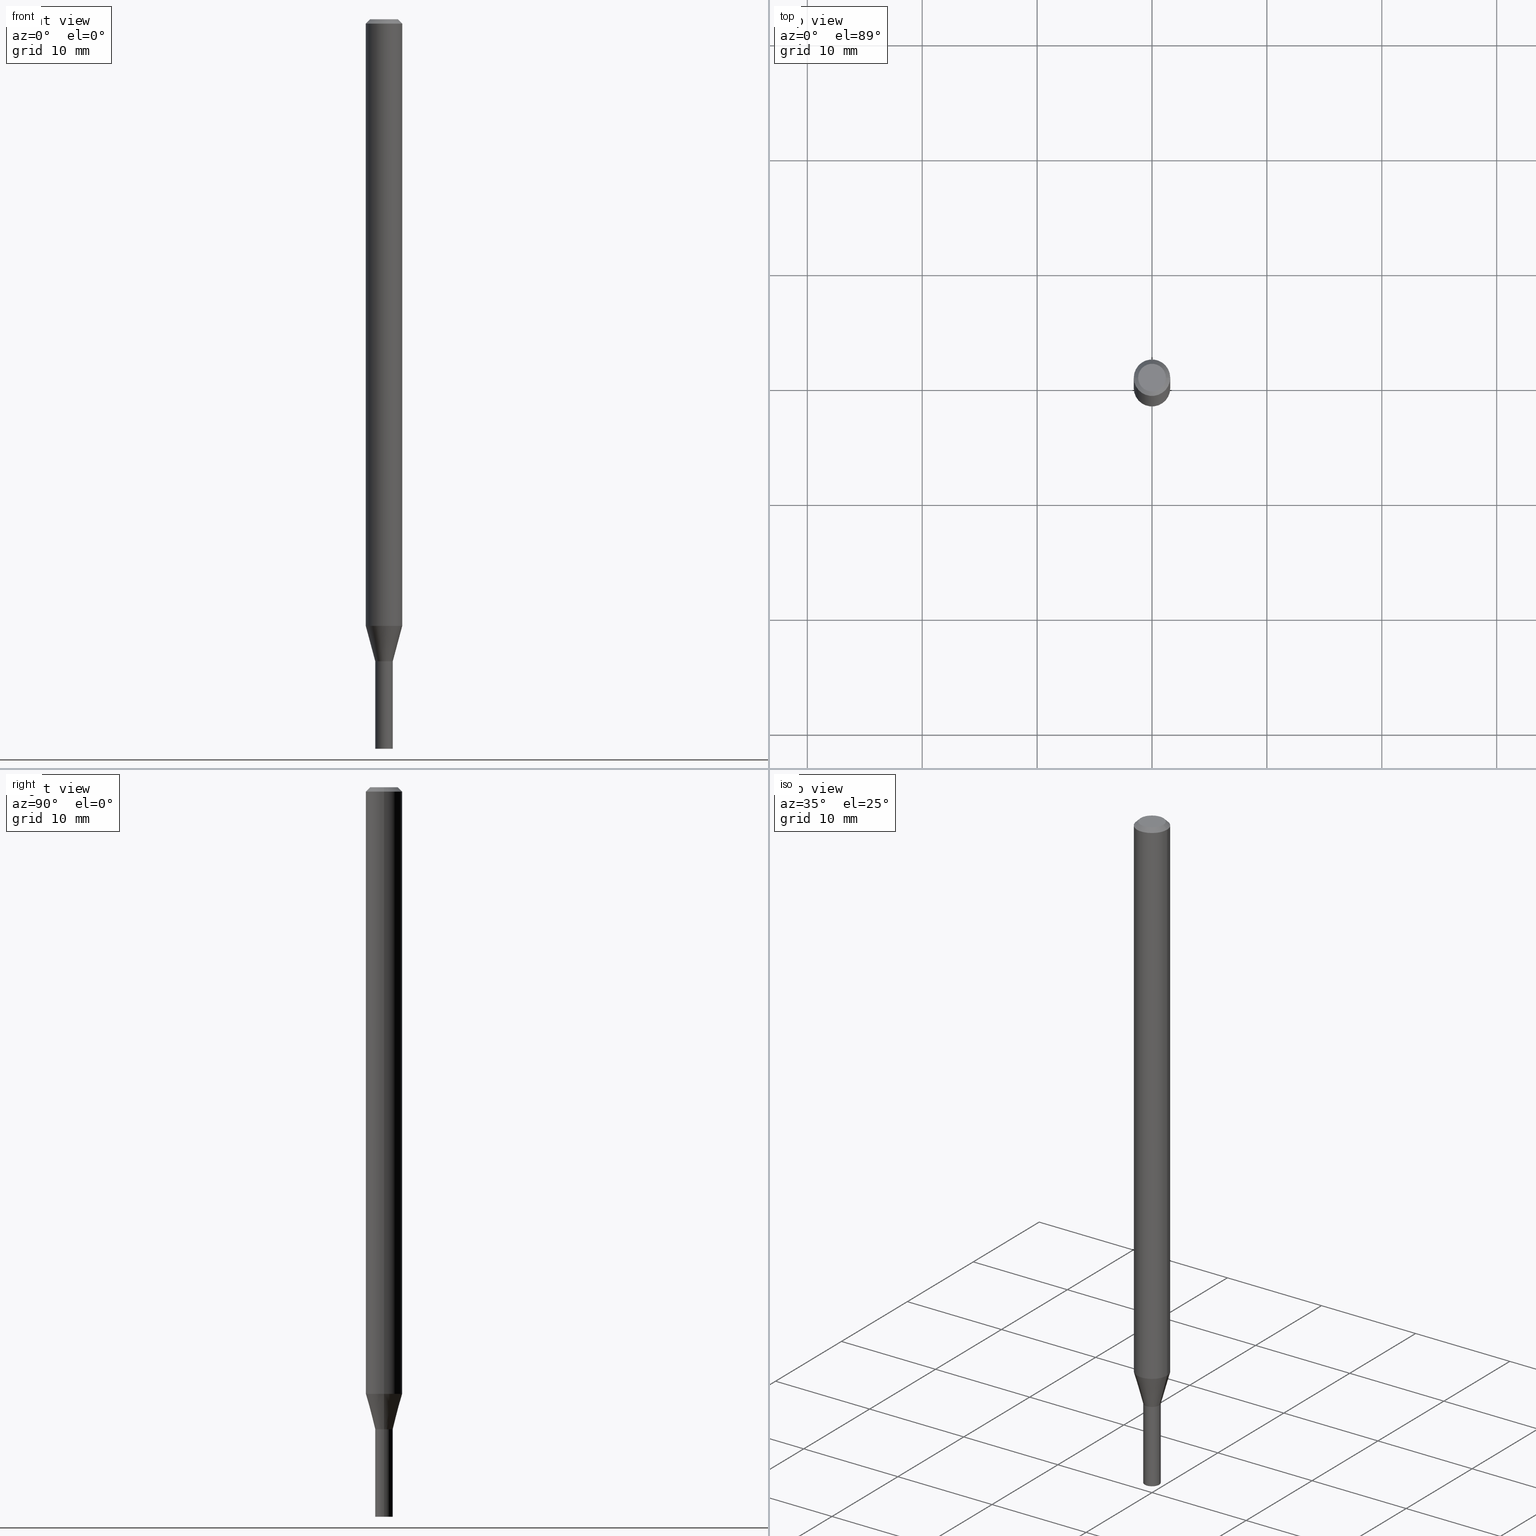
[diagram: canonical four-view strip — front | top / right | iso, engineering-drawing reading convention]
A machine part, canonical four-view strip (front | top / right | iso — engineering-drawing reading convention). The complete STEP part file that produces these views, byte-faithful:
ISO-10303-21;
HEADER;
FILE_DESCRIPTION (( 'STEP AP203' ),
    '1' );
FILE_NAME ('01239.STEP',
    '2024-03-20T00:25:17',
    ( '' ),
    ( '' ),
    'SwSTEP 2.0',
    'SolidWorks 2023',
    '' );
FILE_SCHEMA (( 'CONFIG_CONTROL_DESIGN' ));
ENDSEC;

DATA;
#1 = LINE ( 'NONE', #329, #173 ) ;
#2 = APPROVAL_DATE_TIME ( #303, #458 ) ;
#3 = DIRECTION ( 'NONE',  ( -2.445468806185136597E-29, 3.491481338843145583E-15, 1.000000000000000000 ) ) ;
#4 = LINE ( 'NONE', #298, #250 ) ;
#5 = AXIS2_PLACEMENT_3D ( 'NONE', #160, #81, #229 ) ;
#6 = LOCAL_TIME ( 20, 25, 17.00000000000000000, #148 ) ;
#7 = DIRECTION ( 'NONE',  ( -2.445468806185136597E-29, 3.491481338843145583E-15, 1.000000000000000000 ) ) ;
#8 = APPROVAL_STATUS ( 'not_yet_approved' ) ;
#9 = CARTESIAN_POINT ( 'NONE',  ( 5.380031373607300737E-29, -7.681258945454920203E-15, -2.200000000000000178 ) ) ;
#10 = VERTEX_POINT ( 'NONE', #246 ) ;
#11 = CALENDAR_DATE ( 2024, 19, 3 ) ;
#12 = CARTESIAN_POINT ( 'NONE',  ( 3.316907271900976096E-16, 0.04749999999999999362, -2.430275478499333970E-16 ) ) ;
#13 = ORIENTED_EDGE ( 'NONE', *, *, #425, .F. ) ;
#14 = CIRCLE ( 'NONE', #230, 0.06250000000000000000 ) ;
#15 = AXIS2_PLACEMENT_3D ( 'NONE', #9, #279, #416 ) ;
#16 = DIRECTION ( 'NONE',  ( 1.000000000000000000, -6.982962677686251722E-15, 0.000000000000000000 ) ) ;
#17 = ORIENTED_EDGE ( 'NONE', *, *, #421, .T. ) ;
#18 = ADVANCED_FACE ( 'NONE', ( #319 ), #168, .T. ) ;
#19 = DIRECTION ( 'NONE',  ( -1.000000000000000000, 6.982962677686265922E-15, -4.876176775795935793E-29 ) ) ;
#20 = ORIENTED_EDGE ( 'NONE', *, *, #146, .T. ) ;
#21 = FACE_OUTER_BOUND ( 'NONE', #295, .T. ) ;
#22 = EDGE_CURVE ( 'NONE', #280, #139, #462, .T. ) ;
#23 = APPROVAL_DATE_TIME ( #346, #438 ) ;
#24 = VERTEX_POINT ( 'NONE', #60 ) ;
#25 = ADVANCED_FACE ( 'NONE', ( #133 ), #356, .F. ) ;
#26 = PRODUCT_DEFINITION_SHAPE ( 'NONE', 'NONE',  #174 ) ;
#27 = CARTESIAN_POINT ( 'NONE',  ( 0.000000000000000000, 0.000000000000000000, 0.000000000000000000 ) ) ;
#28 = EDGE_LOOP ( 'NONE', ( #47, #244, #189, #255 ) ) ;
#29 =( CONVERSION_BASED_UNIT ( 'INCH', #318 ) LENGTH_UNIT ( ) NAMED_UNIT ( #218 ) );
#30 = ORIENTED_EDGE ( 'NONE', *, *, #68, .T. ) ;
#31 = ADVANCED_FACE ( 'NONE', ( #211 ), #369, .T. ) ;
#32 = ORIENTED_EDGE ( 'NONE', *, *, #427, .F. ) ;
#33 = FACE_OUTER_BOUND ( 'NONE', #374, .T. ) ;
#34 = DIRECTION ( 'NONE',  ( -2.445468806185136597E-29, 3.491481338843145583E-15, 1.000000000000000000 ) ) ;
#35 = AXIS2_PLACEMENT_3D ( 'NONE', #448, #127, #306 ) ;
#36 = PERSON_AND_ORGANIZATION_ROLE ( 'classification_officer' ) ;
#37 = MANIFOLD_SOLID_BREP ( 'Body-Move/Copy2[2]', #398 ) ;
#38 = DIRECTION ( 'NONE',  ( -2.445468806185136597E-29, 3.491481338843145583E-15, 1.000000000000000000 ) ) ;
#39 = ADVANCED_FACE ( 'NONE', ( #217 ), #348, .F. ) ;
#40 = CARTESIAN_POINT ( 'NONE',  ( -0.02999999999999964154, -7.468096124726893113E-15, -2.200000000000000178 ) ) ;
#41 = DIRECTION ( 'NONE',  ( 0.2588190451025215166, 1.565188264969620784E-15, 0.9659258262890679791 ) ) ;
#42 = VECTOR ( 'NONE', #436, 39.37007874015748143 ) ;
#43 = CC_DESIGN_APPROVAL ( #458, ( #257 ) ) ;
#44 = APPROVAL_ROLE ( '' ) ;
#45 = DIRECTION ( 'NONE',  ( -2.445468806185136597E-29, 3.491481338843145583E-15, 1.000000000000000000 ) ) ;
#46 = DIRECTION ( 'NONE',  ( 1.000000000000000000, -6.982962677686266711E-15, 0.000000000000000000 ) ) ;
#47 = ORIENTED_EDGE ( 'NONE', *, *, #68, .F. ) ;
#48 = CARTESIAN_POINT ( 'NONE',  ( 0.06250000000000000000, -4.888073874380388472E-16, -0.01499999999999999944 ) ) ;
#49 = VERTEX_POINT ( 'NONE', #386 ) ;
#50 = EDGE_CURVE ( 'NONE', #388, #178, #378, .T. ) ;
#51 = AXIS2_PLACEMENT_3D ( 'NONE', #70, #224, #183 ) ;
#52 = LOCAL_TIME ( 20, 25, 17.00000000000000000, #153 ) ;
#53 = DIRECTION ( 'NONE',  ( -1.000000000000000000, 6.982962677686266711E-15, 0.000000000000000000 ) ) ;
#54 = CARTESIAN_POINT ( 'NONE',  ( 0.02999999999999978378, -2.094888803305864926E-16, 1.462853032738770018E-30 ) ) ;
#55 = CARTESIAN_POINT ( 'NONE',  ( 3.774932479771048470E-45, -5.389603120341614588E-31, -1.543643685097680012E-16 ) ) ;
#56 = EDGE_LOOP ( 'NONE', ( #158, #17, #343, #310 ) ) ;
#57 = CIRCLE ( 'NONE', #326, 0.02999999999999999889 ) ;
#58 = ADVANCED_FACE ( 'NONE', ( #74 ), #104, .F. ) ;
#59 = CARTESIAN_POINT ( 'NONE',  ( 5.380031373607300737E-29, -7.681258945454920203E-15, -2.200000000000000178 ) ) ;
#60 = CARTESIAN_POINT ( 'NONE',  ( 0.02999999999999999889, -8.938192227438451682E-15, -2.500000000000000000 ) ) ;
#61 = DIRECTION ( 'NONE',  ( 1.000000000000000000, -6.982962677686267499E-15, 4.852736867747366768E-29 ) ) ;
#62 = ORIENTED_EDGE ( 'NONE', *, *, #336, .T. ) ;
#63 = CALENDAR_DATE ( 2024, 19, 3 ) ;
#64 = DIRECTION ( 'NONE',  ( 1.000000000000000000, -6.982962677686254878E-15, 0.000000000000000000 ) ) ;
#65 = LOCAL_TIME ( 20, 25, 17.00000000000000000, #450 ) ;
#66 = CARTESIAN_POINT ( 'NONE',  ( -0.02999999999999964154, -7.140889161724453994E-15, -2.200000000000000178 ) ) ;
#67 = DIRECTION ( 'NONE',  ( 1.000000000000000000, -6.982962677686267499E-15, 4.876176775795936353E-29 ) ) ;
#68 = EDGE_CURVE ( 'NONE', #178, #280, #430, .T. ) ;
#69 = APPLICATION_PROTOCOL_DEFINITION ( 'international standard', 'config_control_design', 1994, #140 ) ;
#70 = CARTESIAN_POINT ( 'NONE',  ( 2.094888803306417868E-16, 0.02999999999999231753, -2.200000000000000178 ) ) ;
#71 = EDGE_CURVE ( 'NONE', #24, #453, #1, .T. ) ;
#72 = VECTOR ( 'NONE', #77, 39.37007874015748143 ) ;
#73 = PERSON_AND_ORGANIZATION_ROLE ( 'creator' ) ;
#74 = FACE_OUTER_BOUND ( 'NONE', #278, .T. ) ;
#75 = DIRECTION ( 'NONE',  ( -2.445468806185136597E-29, 3.491481338843145583E-15, 1.000000000000000000 ) ) ;
#76 = PRODUCT_RELATED_PRODUCT_CATEGORY ( 'detail', '', ( #350 ) ) ;
#77 = DIRECTION ( 'NONE',  ( -2.445468806185136877E-29, 3.491481338843145188E-15, 1.000000000000000000 ) ) ;
#78 = CONICAL_SURFACE ( 'NONE', #347, 0.06250000000000000000, 0.7853981633974533860 ) ;
#79 = CARTESIAN_POINT ( 'NONE',  ( -0.02999999999999999889, -7.991818325553363117E-15, -2.200000000000000178 ) ) ;
#80 = EDGE_LOOP ( 'NONE', ( #376, #193, #413, #449 ) ) ;
#81 = DIRECTION ( 'NONE',  ( -2.438088387897960049E-29, 3.491481338843145188E-15, 1.000000000000000000 ) ) ;
#82 = ORIENTED_EDGE ( 'NONE', *, *, #124, .F. ) ;
#83 = CARTESIAN_POINT ( 'NONE',  ( 6.113672015462842613E-29, -8.728703347107864943E-15, -2.500000000000000000 ) ) ;
#84 = CC_DESIGN_DATE_AND_TIME_ASSIGNMENT ( #116, #402, ( #174 ) ) ;
#85 = CC_DESIGN_SECURITY_CLASSIFICATION ( #466, ( #257 ) ) ;
#86 = LINE ( 'NONE', #243, #72 ) ;
#87 = ORIENTED_EDGE ( 'NONE', *, *, #354, .F. ) ;
#88 = EDGE_CURVE ( 'NONE', #49, #454, #4, .T. ) ;
#89 = CALENDAR_DATE ( 2024, 19, 3 ) ;
#90 = EDGE_LOOP ( 'NONE', ( #463, #32, #415, #177 ) ) ;
#91 = DIRECTION ( 'NONE',  ( 1.000000000000000000, 0.000000000000000000, 0.000000000000000000 ) ) ;
#92 = DIRECTION ( 'NONE',  ( 1.000000000000000000, -6.982962677686266711E-15, 4.876176775795935232E-29 ) ) ;
#93 = AXIS2_PLACEMENT_3D ( 'NONE', #149, #112, #227 ) ;
#94 = DIRECTION ( 'NONE',  ( 1.000000000000000000, -6.982962677686267499E-15, 4.852736867747366768E-29 ) ) ;
#95 = CC_DESIGN_APPROVAL ( #438, ( #174 ) ) ;
#96 = ORIENTED_EDGE ( 'NONE', *, *, #455, .T. ) ;
#97 = DIRECTION ( 'NONE',  ( 1.000000000000000000, -6.982962677686254878E-15, 0.000000000000000000 ) ) ;
#98 = ORIENTED_EDGE ( 'NONE', *, *, #101, .T. ) ;
#99 = EDGE_CURVE ( 'NONE', #178, #388, #338, .T. ) ;
#100 = ORIENTED_EDGE ( 'NONE', *, *, #285, .T. ) ;
#101 = EDGE_CURVE ( 'NONE', #460, #322, #368, .T. ) ;
#102 = CIRCLE ( 'NONE', #241, 0.02949999999999999498 ) ;
#103 = VECTOR ( 'NONE', #117, 39.37007874015748143 ) ;
#104 = PLANE ( 'NONE',  #215 ) ;
#105 = APPROVAL_PERSON_ORGANIZATION ( #283, #438, #456 ) ;
#106 = SHAPE_DEFINITION_REPRESENTATION ( #26, #201 ) ;
#107 = DIRECTION ( 'NONE',  ( -2.445468806185136597E-29, 3.491481338843145583E-15, 1.000000000000000000 ) ) ;
#108 = CARTESIAN_POINT ( 'NONE',  ( 0.000000000000000000, 0.000000000000000000, 0.000000000000000000 ) ) ;
#109 = CC_DESIGN_PERSON_AND_ORGANIZATION_ASSIGNMENT ( #167, #134, ( #174 ) ) ;
#110 = DIRECTION ( 'NONE',  ( 2.445468806185136597E-29, -3.491481338843145583E-15, -1.000000000000000000 ) ) ;
#111 = PERSON_AND_ORGANIZATION ( #365, #251 ) ;
#112 = DIRECTION ( 'NONE',  ( -2.445468806185136597E-29, 3.491481338843145583E-15, 1.000000000000000000 ) ) ;
#113 = AXIS2_PLACEMENT_3D ( 'NONE', #302, #196, #439 ) ;
#114 = CYLINDRICAL_SURFACE ( 'NONE', #136, 0.02999999999999999889 ) ;
#115 = EDGE_CURVE ( 'NONE', #24, #335, #459, .T. ) ;
#116 = DATE_AND_TIME ( #11, #52 ) ;
#117 = DIRECTION ( 'NONE',  ( -2.445468806185136877E-29, 3.491481338843145188E-15, 1.000000000000000000 ) ) ;
#118 = PERSON_AND_ORGANIZATION ( #365, #251 ) ;
#119 = CARTESIAN_POINT ( 'NONE',  ( 3.668203209277705088E-31, -5.237222008264718399E-17, -0.01499999999999999944 ) ) ;
#120 = EDGE_LOOP ( 'NONE', ( #20, #96, #249, #235 ) ) ;
#121 = AXIS2_PLACEMENT_3D ( 'NONE', #59, #3, #399 ) ;
#122 = CC_DESIGN_APPROVAL ( #432, ( #466 ) ) ;
#123 = SECURITY_CLASSIFICATION_LEVEL ( 'unclassified' ) ;
#124 = EDGE_CURVE ( 'NONE', #388, #460, #185, .T. ) ;
#125 = FACE_OUTER_BOUND ( 'NONE', #120, .T. ) ;
#126 = ORIENTED_EDGE ( 'NONE', *, *, #400, .F. ) ;
#127 = DIRECTION ( 'NONE',  ( -2.445468806185136597E-29, 3.491481338843145583E-15, 1.000000000000000000 ) ) ;
#128 = CARTESIAN_POINT ( 'NONE',  ( -0.02999999999999991909, -7.466350384057469243E-15, -2.199500000000000011 ) ) ;
#129 = ORIENTED_EDGE ( 'NONE', *, *, #408, .F. ) ;
#130 = AXIS2_PLACEMENT_3D ( 'NONE', #27, #204, #170 ) ;
#131 = ORIENTED_EDGE ( 'NONE', *, *, #22, .F. ) ;
#132 = DIRECTION ( 'NONE',  ( -2.445468806185136877E-29, 3.491481338843145188E-15, 1.000000000000000000 ) ) ;
#133 = FACE_OUTER_BOUND ( 'NONE', #410, .T. ) ;
#134 = PERSON_AND_ORGANIZATION_ROLE ( 'creator' ) ;
#135 = ORIENTED_EDGE ( 'NONE', *, *, #22, .T. ) ;
#136 = AXIS2_PLACEMENT_3D ( 'NONE', #401, #75, #435 ) ;
#137 = DIRECTION ( 'NONE',  ( 1.000000000000000000, -6.982962677686262766E-15, 0.000000000000000000 ) ) ;
#138 = AXIS2_PLACEMENT_3D ( 'NONE', #175, #288, #137 ) ;
#139 = VERTEX_POINT ( 'NONE', #150 ) ;
#140 = APPLICATION_CONTEXT ( 'configuration controlled 3d designs of mechanical parts and assemblies' ) ;
#141 = CARTESIAN_POINT ( 'NONE',  ( 5.380031373607300737E-29, -7.681258945454920203E-15, -2.200000000000000178 ) ) ;
#142 = ORIENTED_EDGE ( 'NONE', *, *, #360, .F. ) ;
#143 = CONICAL_SURFACE ( 'NONE', #263, 0.06250000000000000000, 0.7853981633974533860 ) ;
#144 = CONICAL_SURFACE ( 'NONE', #113, 0.02999999999999964154, 0.2617993877991502405 ) ;
#145 = CYLINDRICAL_SURFACE ( 'NONE', #256, 0.02999999999999999889 ) ;
#146 = EDGE_CURVE ( 'NONE', #49, #10, #102, .T. ) ;
#147 = CARTESIAN_POINT ( 'NONE',  ( 5.083416424034546588E-29, -7.257771408572077491E-15, -2.078708348754010782 ) ) ;
#148 = COORDINATED_UNIVERSAL_TIME_OFFSET ( 5, 0, .BEHIND. ) ;
#149 = CARTESIAN_POINT ( 'NONE',  ( 6.113672015462842613E-29, -8.728703347107864943E-15, -2.500000000000000000 ) ) ;
#150 = CARTESIAN_POINT ( 'NONE',  ( -0.06250000000000000000, -3.210982604477299866E-15, -0.01499999999999999944 ) ) ;
#151 = CIRCLE ( 'NONE', #465, 0.02999999999999999889 ) ;
#152 = DIRECTION ( 'NONE',  ( 0.7071067811865656694, -2.468850131082446387E-15, 0.7071067811865294761 ) ) ;
#153 = COORDINATED_UNIVERSAL_TIME_OFFSET ( 5, 0, .BEHIND. ) ;
#154 = CARTESIAN_POINT ( 'NONE',  ( 0.000000000000000000, 0.000000000000000000, 0.000000000000000000 ) ) ;
#155 = EDGE_LOOP ( 'NONE', ( #457, #275 ) ) ;
#156 = EDGE_CURVE ( 'NONE', #460, #280, #14, .T. ) ;
#157 = LINE ( 'NONE', #54, #103 ) ;
#158 = ORIENTED_EDGE ( 'NONE', *, *, #115, .T. ) ;
#159 = VECTOR ( 'NONE', #214, 39.37007874015748143 ) ;
#160 = CARTESIAN_POINT ( 'NONE',  ( 6.194428952736783458E-29, -8.613054816532157721E-15, -2.500000000000000000 ) ) ;
#161 = CARTESIAN_POINT ( 'NONE',  ( -0.02999999999999999889, -7.991818325553363117E-15, -2.500000000000000000 ) ) ;
#162 = ORIENTED_EDGE ( 'NONE', *, *, #191, .F. ) ;
#163 = EDGE_LOOP ( 'NONE', ( #358, #135, #126, #294 ) ) ;
#164 = VECTOR ( 'NONE', #41, 39.37007874015748143 ) ;
#165 = LOCAL_TIME ( 20, 25, 17.00000000000000000, #422 ) ;
#166 = CIRCLE ( 'NONE', #291, 0.02999999999999991909 ) ;
#167 = PERSON_AND_ORGANIZATION ( #365, #251 ) ;
#168 = CYLINDRICAL_SURFACE ( 'NONE', #357, 0.06250000000000000000 ) ;
#169 = CARTESIAN_POINT ( 'NONE',  ( 5.378808639204207936E-29, -7.679513204785499488E-15, -2.199500000000000011 ) ) ;
#170 = DIRECTION ( 'NONE',  ( 1.000000000000000000, -6.982962677686266711E-15, 4.876176775795935232E-29 ) ) ;
#171 = EDGE_CURVE ( 'NONE', #315, #322, #395, .T. ) ;
#172 = ORIENTED_EDGE ( 'NONE', *, *, #421, .F. ) ;
#173 = VECTOR ( 'NONE', #184, 39.37007874015748143 ) ;
#174 = PRODUCT_DEFINITION ( 'UNKNOWN', '', #257, #367 ) ;
#175 = CARTESIAN_POINT ( 'NONE',  ( 5.083416424034546588E-29, -7.257771408572077491E-15, -2.078708348754010782 ) ) ;
#176 = VECTOR ( 'NONE', #132, 39.37007874015748143 ) ;
#177 = ORIENTED_EDGE ( 'NONE', *, *, #191, .T. ) ;
#178 = VERTEX_POINT ( 'NONE', #66 ) ;
#179 = DIRECTION ( 'NONE',  ( -2.445468806185136877E-29, 3.491481338843145188E-15, 1.000000000000000000 ) ) ;
#180 = CC_DESIGN_DATE_AND_TIME_ASSIGNMENT ( #239, #418, ( #466 ) ) ;
#181 = VECTOR ( 'NONE', #179, 39.37007874015748143 ) ;
#182 = CARTESIAN_POINT ( 'NONE',  ( 0.06250000000000000000, -4.811533449433679005E-16, -0.01499999999999999944 ) ) ;
#183 = DIRECTION ( 'NONE',  ( -1.000000000000000000, 6.982962677686265922E-15, -4.876176775795935793E-29 ) ) ;
#184 = DIRECTION ( 'NONE',  ( -2.445468806185136877E-29, 3.491481338843145188E-15, 1.000000000000000000 ) ) ;
#185 = LINE ( 'NONE', #396, #164 ) ;
#186 = AXIS2_PLACEMENT_3D ( 'NONE', #308, #190, #16 ) ;
#187 = COORDINATED_UNIVERSAL_TIME_OFFSET ( 5, 0, .BEHIND. ) ;
#188 = DIRECTION ( 'NONE',  ( 1.000000000000000000, -6.982962677686251722E-15, 0.000000000000000000 ) ) ;
#189 = ORIENTED_EDGE ( 'NONE', *, *, #124, .T. ) ;
#190 = DIRECTION ( 'NONE',  ( -2.445468806185136597E-29, 3.491481338843145583E-15, 1.000000000000000000 ) ) ;
#191 = EDGE_CURVE ( 'NONE', #139, #322, #370, .T. ) ;
#192 = DIRECTION ( 'NONE',  ( 1.000000000000000000, -6.982962677686236734E-15, 0.000000000000000000 ) ) ;
#193 = ORIENTED_EDGE ( 'NONE', *, *, #360, .T. ) ;
#194 = AXIS2_PLACEMENT_3D ( 'NONE', #330, #397, #258 ) ;
#195 = AXIS2_PLACEMENT_3D ( 'NONE', #119, #270, #46 ) ;
#196 = DIRECTION ( 'NONE',  ( -2.445468806185136597E-29, 3.491481338843145583E-15, 1.000000000000000000 ) ) ;
#197 = ORIENTED_EDGE ( 'NONE', *, *, #287, .F. ) ;
#198 = ADVANCED_FACE ( 'NONE', ( #437 ), #114, .T. ) ;
#199 = DIRECTION ( 'NONE',  ( 2.445468806185136597E-29, -3.491481338843145583E-15, -1.000000000000000000 ) ) ;
#200 = EDGE_LOOP ( 'NONE', ( #351, #333, #423, #129 ) ) ;
#201 = ADVANCED_BREP_SHAPE_REPRESENTATION ( '01239', ( #344, #37, #407 ), #313 ) ;
#202 = APPLICATION_CONTEXT ( 'configuration controlled 3d designs of mechanical parts and assemblies' ) ;
#203 = DIRECTION ( 'NONE',  ( -2.445468806185136597E-29, 3.491481338843145583E-15, 1.000000000000000000 ) ) ;
#204 = DIRECTION ( 'NONE',  ( -2.445468806185136597E-29, 3.491481338843145583E-15, 1.000000000000000000 ) ) ;
#205 = CONICAL_SURFACE ( 'NONE', #271, 0.02949999999999999498, 0.7853981633974739252 ) ;
#206 = AXIS2_PLACEMENT_3D ( 'NONE', #55, #203, #94 ) ;
#207 = LINE ( 'NONE', #352, #242 ) ;
#208 = EDGE_LOOP ( 'NONE', ( #289, #420 ) ) ;
#209 = DATE_AND_TIME ( #63, #65 ) ;
#210 = ADVANCED_FACE ( 'NONE', ( #359 ), #143, .T. ) ;
#211 = FACE_OUTER_BOUND ( 'NONE', #28, .T. ) ;
#212 = CC_DESIGN_PERSON_AND_ORGANIZATION_ASSIGNMENT ( #349, #247, ( #350 ) ) ;
#213 = CARTESIAN_POINT ( 'NONE',  ( 0.06250000000000000000, -7.694206575927469161E-15, -2.078708348754010782 ) ) ;
#214 = DIRECTION ( 'NONE',  ( -2.445468806185136877E-29, 3.491481338843145188E-15, 1.000000000000000000 ) ) ;
#215 = AXIS2_PLACEMENT_3D ( 'NONE', #226, #366, #297 ) ;
#216 = APPROVAL_PERSON_ORGANIZATION ( #118, #458, #328 ) ;
#217 = FACE_OUTER_BOUND ( 'NONE', #80, .T. ) ;
#218 = DIMENSIONAL_EXPONENTS ( 1.000000000000000000, 0.000000000000000000, 0.000000000000000000, 0.000000000000000000, 0.000000000000000000, 0.000000000000000000, 0.000000000000000000 ) ;
#219 = CARTESIAN_POINT ( 'NONE',  ( 3.668203209277705088E-31, -5.237222008264718399E-17, -0.01499999999999999944 ) ) ;
#220 = CARTESIAN_POINT ( 'NONE',  ( 5.380031373607300737E-29, -7.681258945454920203E-15, -2.200000000000000178 ) ) ;
#221 =( NAMED_UNIT ( * ) PLANE_ANGLE_UNIT ( ) SI_UNIT ( $, .RADIAN. ) );
#222 = CLOSED_SHELL ( 'NONE', ( #198, #262, #234, #228 ) ) ;
#223 = AXIS2_PLACEMENT_3D ( 'NONE', #154, #404, #377 ) ;
#224 = DIRECTION ( 'NONE',  ( 2.438088387897960049E-29, -3.491481338843145188E-15, -1.000000000000000000 ) ) ;
#225 = UNCERTAINTY_MEASURE_WITH_UNIT (LENGTH_MEASURE( 1.000000000000000082E-05 ), #29, 'distance_accuracy_value', 'NONE');
#226 = CARTESIAN_POINT ( 'NONE',  ( 5.380031373607300737E-29, -7.681258945454920203E-15, -2.200000000000000178 ) ) ;
#227 = DIRECTION ( 'NONE',  ( 1.000000000000000000, -6.982962677686236734E-15, 0.000000000000000000 ) ) ;
#228 = ADVANCED_FACE ( 'NONE', ( #33 ), #324, .F. ) ;
#229 = DIRECTION ( 'NONE',  ( 1.000000000000000000, -6.982962677686265922E-15, 4.876176775795935793E-29 ) ) ;
#230 = AXIS2_PLACEMENT_3D ( 'NONE', #147, #7, #301 ) ;
#231 = CIRCLE ( 'NONE', #15, 0.02999999999999999889 ) ;
#232 = EDGE_LOOP ( 'NONE', ( #131, #429, #98, #162 ) ) ;
#233 = CARTESIAN_POINT ( 'NONE',  ( 5.380031373607300737E-29, -7.681258945454920203E-15, -2.200000000000000178 ) ) ;
#234 = ADVANCED_FACE ( 'NONE', ( #464 ), #145, .T. ) ;
#235 = ORIENTED_EDGE ( 'NONE', *, *, #88, .F. ) ;
#236 = PERSON_AND_ORGANIZATION_ROLE ( 'design_supplier' ) ;
#237 = CARTESIAN_POINT ( 'NONE',  ( 0.04749999999999999362, -4.035134999187581581E-16, -1.543643685097654127E-16 ) ) ;
#238 = ORIENTED_EDGE ( 'NONE', *, *, #248, .T. ) ;
#239 = DATE_AND_TIME ( #405, #6 ) ;
#240 = CYLINDRICAL_SURFACE ( 'NONE', #223, 0.06250000000000000000 ) ;
#241 = AXIS2_PLACEMENT_3D ( 'NONE', #433, #38, #331 ) ;
#242 = VECTOR ( 'NONE', #389, 39.37007874015748143 ) ;
#243 = CARTESIAN_POINT ( 'NONE',  ( -0.02999999999999978378, 2.131628207280285195E-16, -1.475680527076461022E-30 ) ) ;
#244 = ORIENTED_EDGE ( 'NONE', *, *, #99, .T. ) ;
#245 = LINE ( 'NONE', #434, #176 ) ;
#246 = CARTESIAN_POINT ( 'NONE',  ( -0.02949999999999999498, -7.468999611231579655E-15, -2.200000000000000178 ) ) ;
#247 = PERSON_AND_ORGANIZATION_ROLE ( 'design_owner' ) ;
#248 = EDGE_CURVE ( 'NONE', #453, #284, #151, .T. ) ;
#249 = ORIENTED_EDGE ( 'NONE', *, *, #373, .F. ) ;
#250 = VECTOR ( 'NONE', #152, 39.37007874015748143 ) ;
#251 = ORGANIZATION ( 'UNSPECIFIED', 'UNSPECIFIED', '' ) ;
#252 = ORIENTED_EDGE ( 'NONE', *, *, #71, .T. ) ;
#253 = DIRECTION ( 'NONE',  ( -2.445468806185136597E-29, 3.491481338843145583E-15, 1.000000000000000000 ) ) ;
#254 = DIRECTION ( 'NONE',  ( 1.000000000000000000, -6.982962677686266711E-15, 4.876176775795935793E-29 ) ) ;
#255 = ORIENTED_EDGE ( 'NONE', *, *, #440, .F. ) ;
#256 = AXIS2_PLACEMENT_3D ( 'NONE', #296, #107, #67 ) ;
#257 = PRODUCT_DEFINITION_FORMATION_WITH_SPECIFIED_SOURCE ( 'ANY', '', #350, .NOT_KNOWN. ) ;
#258 = DIRECTION ( 'NONE',  ( 1.000000000000000000, -6.982962677686254878E-15, 0.000000000000000000 ) ) ;
#259 = DIRECTION ( 'NONE',  ( 1.000000000000000000, -6.982962677686266711E-15, 0.000000000000000000 ) ) ;
#260 = DIRECTION ( 'NONE',  ( -2.445468806185136597E-29, 3.491481338843145583E-15, 1.000000000000000000 ) ) ;
#261 = CARTESIAN_POINT ( 'NONE',  ( 3.668203209277705088E-31, -5.237222008264718399E-17, -0.01499999999999999944 ) ) ;
#262 = ADVANCED_FACE ( 'NONE', ( #342 ), #269, .F. ) ;
#263 = AXIS2_PLACEMENT_3D ( 'NONE', #261, #110, #265 ) ;
#264 = CIRCLE ( 'NONE', #320, 0.02999999999999991909 ) ;
#265 = DIRECTION ( 'NONE',  ( -1.000000000000000000, 6.982962677686266711E-15, 0.000000000000000000 ) ) ;
#266 = ADVANCED_FACE ( 'NONE', ( #125 ), #281, .T. ) ;
#267 = DIRECTION ( 'NONE',  ( -2.445468806185136597E-29, 3.491481338843145583E-15, 1.000000000000000000 ) ) ;
#268 = ADVANCED_FACE ( 'NONE', ( #409 ), #274, .F. ) ;
#269 = PLANE ( 'NONE',  #5 ) ;
#270 = DIRECTION ( 'NONE',  ( -2.445468806185136597E-29, 3.491481338843145583E-15, 1.000000000000000000 ) ) ;
#271 = AXIS2_PLACEMENT_3D ( 'NONE', #233, #372, #188 ) ;
#272 = ORIENTED_EDGE ( 'NONE', *, *, #50, .F. ) ;
#273 = PERSON_AND_ORGANIZATION ( #365, #251 ) ;
#274 = PLANE ( 'NONE',  #452 ) ;
#275 = ORIENTED_EDGE ( 'NONE', *, *, #425, .T. ) ;
#276 = CARTESIAN_POINT ( 'NONE',  ( -0.04749999999999999362, 3.578768372314208041E-16, -1.543643685097703924E-16 ) ) ;
#277 = EDGE_CURVE ( 'NONE', #317, #139, #414, .T. ) ;
#278 = EDGE_LOOP ( 'NONE', ( #445, #197 ) ) ;
#279 = DIRECTION ( 'NONE',  ( -2.445468806185136597E-29, 3.491481338843145583E-15, 1.000000000000000000 ) ) ;
#280 = VERTEX_POINT ( 'NONE', #411 ) ;
#281 = CONICAL_SURFACE ( 'NONE', #186, 0.02949999999999999498, 0.7853981633974739252 ) ;
#282 = CIRCLE ( 'NONE', #363, 0.04749999999999999362 ) ;
#283 = PERSON_AND_ORGANIZATION ( #365, #251 ) ;
#284 = VERTEX_POINT ( 'NONE', #79 ) ;
#285 = EDGE_CURVE ( 'NONE', #388, #454, #157, .T. ) ;
#286 = CARTESIAN_POINT ( 'NONE',  ( 0.000000000000000000, 0.000000000000000000, 0.000000000000000000 ) ) ;
#287 = EDGE_CURVE ( 'NONE', #10, #49, #431, .T. ) ;
#288 = DIRECTION ( 'NONE',  ( -2.445468806185136597E-29, 3.491481338843145583E-15, 1.000000000000000000 ) ) ;
#289 = ORIENTED_EDGE ( 'NONE', *, *, #115, .F. ) ;
#290 = AXIS2_PLACEMENT_3D ( 'NONE', #219, #267, #259 ) ;
#291 = AXIS2_PLACEMENT_3D ( 'NONE', #169, #253, #97 ) ;
#292 =( NAMED_UNIT ( * ) SI_UNIT ( $, .STERADIAN. ) SOLID_ANGLE_UNIT ( ) );
#293 = CARTESIAN_POINT ( 'NONE',  ( 0.000000000000000000, 0.000000000000000000, 0.000000000000000000 ) ) ;
#294 = ORIENTED_EDGE ( 'NONE', *, *, #101, .F. ) ;
#295 = EDGE_LOOP ( 'NONE', ( #447, #30, #381, #82 ) ) ;
#296 = CARTESIAN_POINT ( 'NONE',  ( 0.000000000000000000, 0.000000000000000000, 0.000000000000000000 ) ) ;
#297 = DIRECTION ( 'NONE',  ( 1.000000000000000000, -6.982962677686265922E-15, 4.876176775795935793E-29 ) ) ;
#298 = CARTESIAN_POINT ( 'NONE',  ( 0.02949999999999999498, -7.887256344446665513E-15, -2.200000000000000178 ) ) ;
#299 = CALENDAR_DATE ( 2024, 19, 3 ) ;
#300 = LOCAL_TIME ( 20, 25, 17.00000000000000000, #187 ) ;
#301 = DIRECTION ( 'NONE',  ( 1.000000000000000000, -6.982962677686262766E-15, 0.000000000000000000 ) ) ;
#302 = CARTESIAN_POINT ( 'NONE',  ( 5.380031373607300737E-29, -7.681258945454920203E-15, -2.200000000000000178 ) ) ;
#303 = DATE_AND_TIME ( #299, #300 ) ;
#304 = CARTESIAN_POINT ( 'NONE',  ( -0.06250000000000000000, 3.840629472727444916E-16, -0.01499999999999999944 ) ) ;
#305 = EDGE_LOOP ( 'NONE', ( #13, #323, #340, #383 ) ) ;
#306 = DIRECTION ( 'NONE',  ( 1.000000000000000000, -6.982962677686251722E-15, 0.000000000000000000 ) ) ;
#307 = ORIENTED_EDGE ( 'NONE', *, *, #354, .T. ) ;
#308 = CARTESIAN_POINT ( 'NONE',  ( 5.380031373607300737E-29, -7.681258945454920203E-15, -2.200000000000000178 ) ) ;
#309 = DIRECTION ( 'NONE',  ( -2.445468806185136597E-29, 3.491481338843145583E-15, 1.000000000000000000 ) ) ;
#310 = ORIENTED_EDGE ( 'NONE', *, *, #71, .F. ) ;
#311 = VECTOR ( 'NONE', #334, 39.37007874015748143 ) ;
#312 = ADVANCED_FACE ( 'NONE', ( #380 ), #78, .T. ) ;
#313 =( GEOMETRIC_REPRESENTATION_CONTEXT ( 3 ) GLOBAL_UNCERTAINTY_ASSIGNED_CONTEXT ( ( #225 ) ) GLOBAL_UNIT_ASSIGNED_CONTEXT ( ( #29, #221, #292 ) ) REPRESENTATION_CONTEXT ( 'NONE', 'WORKASPACE' ) );
#314 = CARTESIAN_POINT ( 'NONE',  ( 0.02999999999999991909, -7.889002085116086227E-15, -2.199500000000000011 ) ) ;
#315 = VERTEX_POINT ( 'NONE', #237 ) ;
#316 = APPLICATION_PROTOCOL_DEFINITION ( 'international standard', 'config_control_design', 1994, #202 ) ;
#317 = VERTEX_POINT ( 'NONE', #276 ) ;
#318 = LENGTH_MEASURE_WITH_UNIT ( LENGTH_MEASURE( 0.02539999999999999897 ), #387 );
#319 = FACE_OUTER_BOUND ( 'NONE', #163, .T. ) ;
#320 = AXIS2_PLACEMENT_3D ( 'NONE', #371, #45, #332 ) ;
#321 = ADVANCED_FACE ( 'NONE', ( #375 ), #205, .T. ) ;
#322 = VERTEX_POINT ( 'NONE', #48 ) ;
#323 = ORIENTED_EDGE ( 'NONE', *, *, #171, .T. ) ;
#324 = PLANE ( 'NONE',  #51 ) ;
#325 = ADVANCED_FACE ( 'NONE', ( #21 ), #144, .T. ) ;
#326 = AXIS2_PLACEMENT_3D ( 'NONE', #83, #309, #192 ) ;
#327 = DIRECTION ( 'NONE',  ( 1.000000000000000000, -6.982962677686268288E-15, 0.000000000000000000 ) ) ;
#328 = APPROVAL_ROLE ( '' ) ;
#329 = CARTESIAN_POINT ( 'NONE',  ( 0.02999999999999999889, -2.094888803305880210E-16, 1.462853032738780878E-30 ) ) ;
#330 = CARTESIAN_POINT ( 'NONE',  ( 5.380031373607300737E-29, -7.681258945454920203E-15, -2.200000000000000178 ) ) ;
#331 = DIRECTION ( 'NONE',  ( 1.000000000000000000, -6.982962677686251722E-15, 0.000000000000000000 ) ) ;
#332 = DIRECTION ( 'NONE',  ( 1.000000000000000000, -6.982962677686254878E-15, 0.000000000000000000 ) ) ;
#333 = ORIENTED_EDGE ( 'NONE', *, *, #287, .T. ) ;
#334 = DIRECTION ( 'NONE',  ( -0.7071067811865511255, 2.468850131082294531E-15, -0.7071067811865439090 ) ) ;
#335 = VERTEX_POINT ( 'NONE', #161 ) ;
#336 = EDGE_CURVE ( 'NONE', #335, #24, #57, .T. ) ;
#337 = FACE_OUTER_BOUND ( 'NONE', #232, .T. ) ;
#338 = CIRCLE ( 'NONE', #194, 0.02999999999999964154 ) ;
#339 = CIRCLE ( 'NONE', #138, 0.06250000000000000000 ) ;
#340 = ORIENTED_EDGE ( 'NONE', *, *, #400, .T. ) ;
#341 = ADVANCED_FACE ( 'NONE', ( #337 ), #240, .T. ) ;
#342 = FACE_OUTER_BOUND ( 'NONE', #208, .T. ) ;
#343 = ORIENTED_EDGE ( 'NONE', *, *, #248, .F. ) ;
#344 = MANIFOLD_SOLID_BREP ( 'Body-Move/Copy2[1]', #222 ) ;
#345 = VERTEX_POINT ( 'NONE', #128 ) ;
#346 = DATE_AND_TIME ( #89, #165 ) ;
#347 = AXIS2_PLACEMENT_3D ( 'NONE', #444, #199, #53 ) ;
#348 = CYLINDRICAL_SURFACE ( 'NONE', #393, 0.02999999999999978378 ) ;
#349 = PERSON_AND_ORGANIZATION ( #365, #251 ) ;
#350 = PRODUCT ( '01239', '01239', '', ( #362 ) ) ;
#351 = ORIENTED_EDGE ( 'NONE', *, *, #455, .F. ) ;
#352 = CARTESIAN_POINT ( 'NONE',  ( -0.02949999999999999498, -7.471648838405690067E-15, -2.200000000000000178 ) ) ;
#353 = EDGE_LOOP ( 'NONE', ( #172, #62, #252, #87 ) ) ;
#354 = EDGE_CURVE ( 'NONE', #284, #453, #231, .T. ) ;
#355 = CARTESIAN_POINT ( 'NONE',  ( 0.02999999999999999889, -7.890747825785508520E-15, -2.200000000000000178 ) ) ;
#356 = CYLINDRICAL_SURFACE ( 'NONE', #130, 0.02999999999999978378 ) ;
#357 = AXIS2_PLACEMENT_3D ( 'NONE', #293, #428, #254 ) ;
#358 = ORIENTED_EDGE ( 'NONE', *, *, #156, .T. ) ;
#359 = FACE_OUTER_BOUND ( 'NONE', #305, .T. ) ;
#360 = EDGE_CURVE ( 'NONE', #178, #345, #86, .T. ) ;
#361 = CARTESIAN_POINT ( 'NONE',  ( 0.06250000000000000000, -4.364351673553916694E-16, 3.047610484872459871E-30 ) ) ;
#362 = MECHANICAL_CONTEXT ( 'NONE', #140, 'mechanical' ) ;
#363 = AXIS2_PLACEMENT_3D ( 'NONE', #382, #260, #61 ) ;
#364 = DIRECTION ( 'NONE',  ( -0.2588190451025215166, 5.211531920934551042E-15, 0.9659258262890679791 ) ) ;
#365 = PERSON ( 'UNSPECIFIED', 'UNSPECIFIED', 'UNSPECIFIED', ('UNSPECIFIED'), ('UNSPECIFIED'), ('UNSPECIFIED') ) ;
#366 = DIRECTION ( 'NONE',  ( -2.438088387897960049E-29, 3.491481338843145188E-15, 1.000000000000000000 ) ) ;
#367 = DESIGN_CONTEXT ( 'detailed design', #202, 'design' ) ;
#368 = LINE ( 'NONE', #361, #181 ) ;
#369 = CONICAL_SURFACE ( 'NONE', #417, 0.02999999999999964154, 0.2617993877991502405 ) ;
#370 = CIRCLE ( 'NONE', #290, 0.06250000000000000000 ) ;
#371 = CARTESIAN_POINT ( 'NONE',  ( 5.378808639204207936E-29, -7.679513204785499488E-15, -2.199500000000000011 ) ) ;
#372 = DIRECTION ( 'NONE',  ( -2.445468806185136597E-29, 3.491481338843145583E-15, 1.000000000000000000 ) ) ;
#373 = EDGE_CURVE ( 'NONE', #454, #345, #264, .T. ) ;
#374 = EDGE_LOOP ( 'NONE', ( #238, #307 ) ) ;
#375 = FACE_OUTER_BOUND ( 'NONE', #200, .T. ) ;
#376 = ORIENTED_EDGE ( 'NONE', *, *, #99, .F. ) ;
#377 = DIRECTION ( 'NONE',  ( 1.000000000000000000, -6.982962677686266711E-15, 4.876176775795935793E-29 ) ) ;
#378 = CIRCLE ( 'NONE', #121, 0.02999999999999964154 ) ;
#379 = CIRCLE ( 'NONE', #206, 0.04749999999999999362 ) ;
#380 = FACE_OUTER_BOUND ( 'NONE', #90, .T. ) ;
#381 = ORIENTED_EDGE ( 'NONE', *, *, #156, .F. ) ;
#382 = CARTESIAN_POINT ( 'NONE',  ( 3.774932479771048470E-45, -5.389603120341614588E-31, -1.543643685097680012E-16 ) ) ;
#383 = ORIENTED_EDGE ( 'NONE', *, *, #277, .F. ) ;
#384 = APPROVAL_STATUS ( 'not_yet_approved' ) ;
#385 = VECTOR ( 'NONE', #364, 39.37007874015748143 ) ;
#386 = CARTESIAN_POINT ( 'NONE',  ( 0.02949999999999999498, -7.887256344446665513E-15, -2.200000000000000178 ) ) ;
#387 =( LENGTH_UNIT ( ) NAMED_UNIT ( * ) SI_UNIT ( $, .METRE. ) );
#388 = VERTEX_POINT ( 'NONE', #441 ) ;
#389 = DIRECTION ( 'NONE',  ( -0.7071067811865656694, 7.493145998870420424E-15, 0.7071067811865294761 ) ) ;
#390 = CARTESIAN_POINT ( 'NONE',  ( -0.06250000000000000000, 4.440892098500626162E-16, -3.074334431409316114E-30 ) ) ;
#391 = DIRECTION ( 'NONE',  ( -2.445468806185136597E-29, 3.491481338843145583E-15, 1.000000000000000000 ) ) ;
#392 = APPROVAL_DATE_TIME ( #209, #432 ) ;
#393 = AXIS2_PLACEMENT_3D ( 'NONE', #286, #424, #92 ) ;
#394 = APPROVAL_PERSON_ORGANIZATION ( #111, #432, #44 ) ;
#395 = LINE ( 'NONE', #182, #42 ) ;
#396 = CARTESIAN_POINT ( 'NONE',  ( 0.02999999999999964154, -7.890747825785505364E-15, -2.200000000000000178 ) ) ;
#397 = DIRECTION ( 'NONE',  ( -2.445468806185136597E-29, 3.491481338843145583E-15, 1.000000000000000000 ) ) ;
#398 = CLOSED_SHELL ( 'NONE', ( #39, #266, #210, #18, #325, #31, #341, #312, #268, #58, #321, #25 ) ) ;
#399 = DIRECTION ( 'NONE',  ( 1.000000000000000000, -6.982962677686254878E-15, 0.000000000000000000 ) ) ;
#400 = EDGE_CURVE ( 'NONE', #322, #139, #419, .T. ) ;
#401 = CARTESIAN_POINT ( 'NONE',  ( 0.000000000000000000, 0.000000000000000000, 0.000000000000000000 ) ) ;
#402 = DATE_TIME_ROLE ( 'creation_date' ) ;
#403 = CC_DESIGN_PERSON_AND_ORGANIZATION_ASSIGNMENT ( #442, #236, ( #257 ) ) ;
#404 = DIRECTION ( 'NONE',  ( -2.445468806185136597E-29, 3.491481338843145583E-15, 1.000000000000000000 ) ) ;
#405 = CALENDAR_DATE ( 2024, 19, 3 ) ;
#406 = PERSON_AND_ORGANIZATION ( #365, #251 ) ;
#407 = AXIS2_PLACEMENT_3D ( 'NONE', #108, #451, #91 ) ;
#408 = EDGE_CURVE ( 'NONE', #345, #454, #166, .T. ) ;
#409 = FACE_OUTER_BOUND ( 'NONE', #155, .T. ) ;
#410 = EDGE_LOOP ( 'NONE', ( #142, #272, #100, #426 ) ) ;
#411 = CARTESIAN_POINT ( 'NONE',  ( -0.06250000000000000000, -6.813682198722014086E-15, -2.078708348754010782 ) ) ;
#412 = CC_DESIGN_PERSON_AND_ORGANIZATION_ASSIGNMENT ( #273, #36, ( #466 ) ) ;
#413 = ORIENTED_EDGE ( 'NONE', *, *, #408, .T. ) ;
#414 = LINE ( 'NONE', #304, #311 ) ;
#415 = ORIENTED_EDGE ( 'NONE', *, *, #277, .T. ) ;
#416 = DIRECTION ( 'NONE',  ( 1.000000000000000000, -6.982962677686268288E-15, 0.000000000000000000 ) ) ;
#417 = AXIS2_PLACEMENT_3D ( 'NONE', #141, #391, #64 ) ;
#418 = DATE_TIME_ROLE ( 'classification_date' ) ;
#419 = CIRCLE ( 'NONE', #195, 0.06250000000000000000 ) ;
#420 = ORIENTED_EDGE ( 'NONE', *, *, #336, .F. ) ;
#421 = EDGE_CURVE ( 'NONE', #335, #284, #245, .T. ) ;
#422 = COORDINATED_UNIVERSAL_TIME_OFFSET ( 5, 0, .BEHIND. ) ;
#423 = ORIENTED_EDGE ( 'NONE', *, *, #88, .T. ) ;
#424 = DIRECTION ( 'NONE',  ( -2.445468806185136597E-29, 3.491481338843145583E-15, 1.000000000000000000 ) ) ;
#425 = EDGE_CURVE ( 'NONE', #315, #317, #282, .T. ) ;
#426 = ORIENTED_EDGE ( 'NONE', *, *, #373, .T. ) ;
#427 = EDGE_CURVE ( 'NONE', #317, #315, #379, .T. ) ;
#428 = DIRECTION ( 'NONE',  ( -2.445468806185136597E-29, 3.491481338843145583E-15, 1.000000000000000000 ) ) ;
#429 = ORIENTED_EDGE ( 'NONE', *, *, #440, .T. ) ;
#430 = LINE ( 'NONE', #40, #385 ) ;
#431 = CIRCLE ( 'NONE', #35, 0.02949999999999999498 ) ;
#432 = APPROVAL ( #461, 'UNSPECIFIED' ) ;
#433 = CARTESIAN_POINT ( 'NONE',  ( 5.380031373607300737E-29, -7.681258945454920203E-15, -2.200000000000000178 ) ) ;
#434 = CARTESIAN_POINT ( 'NONE',  ( -0.02999999999999999889, 2.131628207280300479E-16, -1.475680527076471707E-30 ) ) ;
#435 = DIRECTION ( 'NONE',  ( 1.000000000000000000, -6.982962677686267499E-15, 4.876176775795936353E-29 ) ) ;
#436 = DIRECTION ( 'NONE',  ( 0.7071067811865511255, -7.319954787623268667E-15, -0.7071067811865439090 ) ) ;
#437 = FACE_OUTER_BOUND ( 'NONE', #56, .T. ) ;
#438 = APPROVAL ( #384, 'UNSPECIFIED' ) ;
#439 = DIRECTION ( 'NONE',  ( 1.000000000000000000, -6.982962677686254878E-15, 0.000000000000000000 ) ) ;
#440 = EDGE_CURVE ( 'NONE', #280, #460, #339, .T. ) ;
#441 = CARTESIAN_POINT ( 'NONE',  ( 0.02999999999999964154, -7.890747825785505364E-15, -2.200000000000000178 ) ) ;
#442 = PERSON_AND_ORGANIZATION ( #365, #251 ) ;
#443 = CC_DESIGN_PERSON_AND_ORGANIZATION_ASSIGNMENT ( #406, #73, ( #257 ) ) ;
#444 = CARTESIAN_POINT ( 'NONE',  ( 3.668203209277705088E-31, -5.237222008264718399E-17, -0.01499999999999999944 ) ) ;
#445 = ORIENTED_EDGE ( 'NONE', *, *, #146, .F. ) ;
#446 = DIRECTION ( 'NONE',  ( 2.438088387897960049E-29, -3.491481338843145188E-15, -1.000000000000000000 ) ) ;
#447 = ORIENTED_EDGE ( 'NONE', *, *, #50, .T. ) ;
#448 = CARTESIAN_POINT ( 'NONE',  ( 5.380031373607300737E-29, -7.681258945454920203E-15, -2.200000000000000178 ) ) ;
#449 = ORIENTED_EDGE ( 'NONE', *, *, #285, .F. ) ;
#450 = COORDINATED_UNIVERSAL_TIME_OFFSET ( 5, 0, .BEHIND. ) ;
#451 = DIRECTION ( 'NONE',  ( 0.000000000000000000, 0.000000000000000000, 1.000000000000000000 ) ) ;
#452 = AXIS2_PLACEMENT_3D ( 'NONE', #12, #446, #19 ) ;
#453 = VERTEX_POINT ( 'NONE', #355 ) ;
#454 = VERTEX_POINT ( 'NONE', #314 ) ;
#455 = EDGE_CURVE ( 'NONE', #10, #345, #207, .T. ) ;
#456 = APPROVAL_ROLE ( '' ) ;
#457 = ORIENTED_EDGE ( 'NONE', *, *, #427, .T. ) ;
#458 = APPROVAL ( #8, 'UNSPECIFIED' ) ;
#459 = CIRCLE ( 'NONE', #93, 0.02999999999999999889 ) ;
#460 = VERTEX_POINT ( 'NONE', #213 ) ;
#461 = APPROVAL_STATUS ( 'not_yet_approved' ) ;
#462 = LINE ( 'NONE', #390, #159 ) ;
#463 = ORIENTED_EDGE ( 'NONE', *, *, #171, .F. ) ;
#464 = FACE_OUTER_BOUND ( 'NONE', #353, .T. ) ;
#465 = AXIS2_PLACEMENT_3D ( 'NONE', #220, #34, #327 ) ;
#466 = SECURITY_CLASSIFICATION ( '', '', #123 ) ;
ENDSEC;
END-ISO-10303-21;
